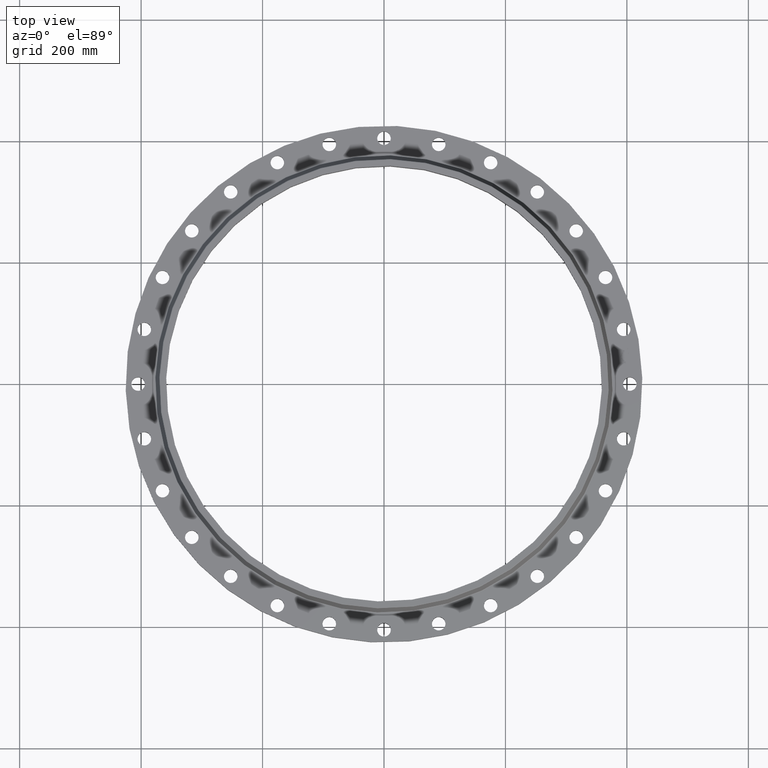
[diagram: clean part render]
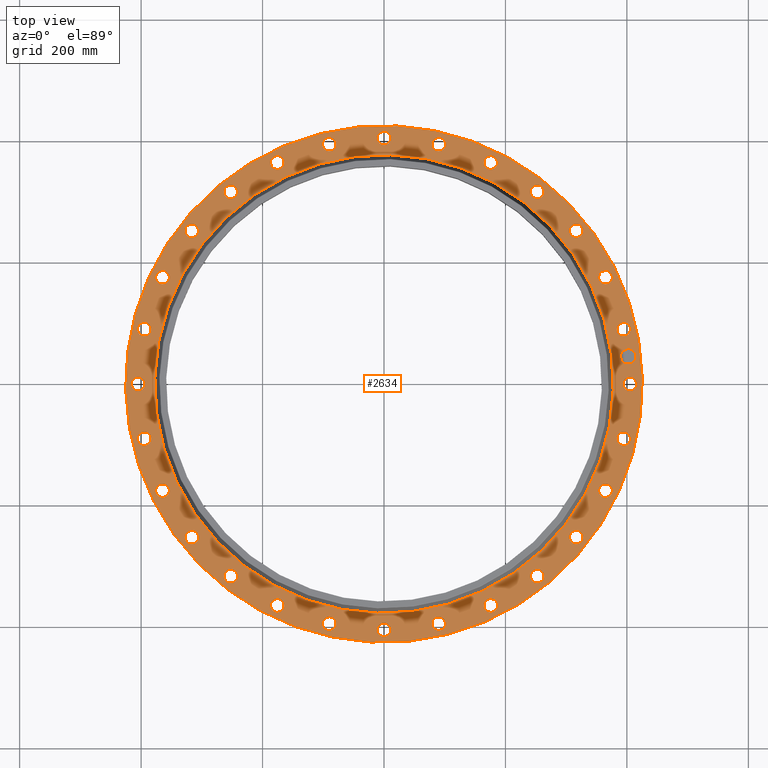
[diagram: same view with one face highlighted and labeled with its STEP entity id]
A machine part, top view. The second image highlights one B-rep face of the part: STEP entity #2634.
In plain terms, the highlighted planar face has unit normal (0, 0, -1).
Its self-contained STEP definition (entity closure, byte-faithful):
#65=AXIS2_PLACEMENT_3D('Circle Axis2P3D',#63,#64,$) ;
#89=AXIS2_PLACEMENT_3D('Circle Axis2P3D',#87,#88,$) ;
#123=AXIS2_PLACEMENT_3D('Circle Axis2P3D',#121,#122,$) ;
#147=AXIS2_PLACEMENT_3D('Circle Axis2P3D',#145,#146,$) ;
#164=AXIS2_PLACEMENT_3D('Circle Axis2P3D',#162,#163,$) ;
#199=AXIS2_PLACEMENT_3D('Circle Axis2P3D',#197,#198,$) ;
#1324=AXIS2_PLACEMENT_3D('Circle Axis2P3D',#1322,#1323,$) ;
#1336=AXIS2_PLACEMENT_3D('Circle Axis2P3D',#1334,#1335,$) ;
#1368=AXIS2_PLACEMENT_3D('Circle Axis2P3D',#1366,#1367,$) ;
#1380=AXIS2_PLACEMENT_3D('Circle Axis2P3D',#1378,#1379,$) ;
#1412=AXIS2_PLACEMENT_3D('Circle Axis2P3D',#1410,#1411,$) ;
#1424=AXIS2_PLACEMENT_3D('Circle Axis2P3D',#1422,#1423,$) ;
#1456=AXIS2_PLACEMENT_3D('Circle Axis2P3D',#1454,#1455,$) ;
#1468=AXIS2_PLACEMENT_3D('Circle Axis2P3D',#1466,#1467,$) ;
#1500=AXIS2_PLACEMENT_3D('Circle Axis2P3D',#1498,#1499,$) ;
#1512=AXIS2_PLACEMENT_3D('Circle Axis2P3D',#1510,#1511,$) ;
#1544=AXIS2_PLACEMENT_3D('Circle Axis2P3D',#1542,#1543,$) ;
#1556=AXIS2_PLACEMENT_3D('Circle Axis2P3D',#1554,#1555,$) ;
#1588=AXIS2_PLACEMENT_3D('Circle Axis2P3D',#1586,#1587,$) ;
#1600=AXIS2_PLACEMENT_3D('Circle Axis2P3D',#1598,#1599,$) ;
#1632=AXIS2_PLACEMENT_3D('Circle Axis2P3D',#1630,#1631,$) ;
#1644=AXIS2_PLACEMENT_3D('Circle Axis2P3D',#1642,#1643,$) ;
#1676=AXIS2_PLACEMENT_3D('Circle Axis2P3D',#1674,#1675,$) ;
#1688=AXIS2_PLACEMENT_3D('Circle Axis2P3D',#1686,#1687,$) ;
#1720=AXIS2_PLACEMENT_3D('Circle Axis2P3D',#1718,#1719,$) ;
#1732=AXIS2_PLACEMENT_3D('Circle Axis2P3D',#1730,#1731,$) ;
#1764=AXIS2_PLACEMENT_3D('Circle Axis2P3D',#1762,#1763,$) ;
#1776=AXIS2_PLACEMENT_3D('Circle Axis2P3D',#1774,#1775,$) ;
#1808=AXIS2_PLACEMENT_3D('Circle Axis2P3D',#1806,#1807,$) ;
#1820=AXIS2_PLACEMENT_3D('Circle Axis2P3D',#1818,#1819,$) ;
#1852=AXIS2_PLACEMENT_3D('Circle Axis2P3D',#1850,#1851,$) ;
#1864=AXIS2_PLACEMENT_3D('Circle Axis2P3D',#1862,#1863,$) ;
#1896=AXIS2_PLACEMENT_3D('Circle Axis2P3D',#1894,#1895,$) ;
#1908=AXIS2_PLACEMENT_3D('Circle Axis2P3D',#1906,#1907,$) ;
#1940=AXIS2_PLACEMENT_3D('Circle Axis2P3D',#1938,#1939,$) ;
#1952=AXIS2_PLACEMENT_3D('Circle Axis2P3D',#1950,#1951,$) ;
#1984=AXIS2_PLACEMENT_3D('Circle Axis2P3D',#1982,#1983,$) ;
#1996=AXIS2_PLACEMENT_3D('Circle Axis2P3D',#1994,#1995,$) ;
#2028=AXIS2_PLACEMENT_3D('Circle Axis2P3D',#2026,#2027,$) ;
#2040=AXIS2_PLACEMENT_3D('Circle Axis2P3D',#2038,#2039,$) ;
#2072=AXIS2_PLACEMENT_3D('Circle Axis2P3D',#2070,#2071,$) ;
#2084=AXIS2_PLACEMENT_3D('Circle Axis2P3D',#2082,#2083,$) ;
#2116=AXIS2_PLACEMENT_3D('Circle Axis2P3D',#2114,#2115,$) ;
#2128=AXIS2_PLACEMENT_3D('Circle Axis2P3D',#2126,#2127,$) ;
#2160=AXIS2_PLACEMENT_3D('Circle Axis2P3D',#2158,#2159,$) ;
#2172=AXIS2_PLACEMENT_3D('Circle Axis2P3D',#2170,#2171,$) ;
#2204=AXIS2_PLACEMENT_3D('Circle Axis2P3D',#2202,#2203,$) ;
#2216=AXIS2_PLACEMENT_3D('Circle Axis2P3D',#2214,#2215,$) ;
#2248=AXIS2_PLACEMENT_3D('Circle Axis2P3D',#2246,#2247,$) ;
#2260=AXIS2_PLACEMENT_3D('Circle Axis2P3D',#2258,#2259,$) ;
#2292=AXIS2_PLACEMENT_3D('Circle Axis2P3D',#2290,#2291,$) ;
#2304=AXIS2_PLACEMENT_3D('Circle Axis2P3D',#2302,#2303,$) ;
#2336=AXIS2_PLACEMENT_3D('Circle Axis2P3D',#2334,#2335,$) ;
#2348=AXIS2_PLACEMENT_3D('Circle Axis2P3D',#2346,#2347,$) ;
#2380=AXIS2_PLACEMENT_3D('Circle Axis2P3D',#2378,#2379,$) ;
#2392=AXIS2_PLACEMENT_3D('Circle Axis2P3D',#2390,#2391,$) ;
#2424=AXIS2_PLACEMENT_3D('Circle Axis2P3D',#2422,#2423,$) ;
#2436=AXIS2_PLACEMENT_3D('Circle Axis2P3D',#2434,#2435,$) ;
#2468=AXIS2_PLACEMENT_3D('Circle Axis2P3D',#2466,#2467,$) ;
#2480=AXIS2_PLACEMENT_3D('Circle Axis2P3D',#2478,#2479,$) ;
#2494=AXIS2_PLACEMENT_3D('Plane Axis2P3D',#2491,#2492,#2493) ;
#2618=AXIS2_PLACEMENT_3D('Circle Axis2P3D',#2616,#2617,$) ;
#2627=AXIS2_PLACEMENT_3D('Circle Axis2P3D',#2625,#2626,$) ;
#46=CARTESIAN_POINT('Vertex',(15.5538636728,0.210947236987,1.38000000001)) ;
#60=CARTESIAN_POINT('Vertex',(16.3261363273,-0.210947236987,1.38000000001)) ;
#63=CARTESIAN_POINT('Axis2P3D Location',(15.9400000001,0.,1.38000000001)) ;
#87=CARTESIAN_POINT('Axis2P3D Location',(15.9400000001,0.,1.38000000001)) ;
#118=CARTESIAN_POINT('Vertex',(-8.03037777165,-14.6995079117,1.38000000001)) ;
#121=CARTESIAN_POINT('Axis2P3D Location',(0.,0.,1.38000000001)) ;
#125=CARTESIAN_POINT('Vertex',(8.03037777165,14.6995079117,1.38000000001)) ;
#145=CARTESIAN_POINT('Axis2P3D Location',(0.,0.,1.38000000001)) ;
#162=CARTESIAN_POINT('Axis2P3D Location',(0.,0.,1.38000000001)) ;
#166=CARTESIAN_POINT('Vertex',(7.12682650201,13.0455684067,1.38000000001)) ;
#168=CARTESIAN_POINT('Vertex',(-7.12682650201,-13.0455684067,1.38000000001)) ;
#197=CARTESIAN_POINT('Axis2P3D Location',(0.,0.,1.38000000001)) ;
#1312=CARTESIAN_POINT('Vertex',(-15.5538636728,-0.210947236987,1.38000000001)) ;
#1319=CARTESIAN_POINT('Vertex',(-16.3261363273,0.210947236987,1.38000000001)) ;
#1322=CARTESIAN_POINT('Axis2P3D Location',(-15.9400000001,-9.03086900289E-015,1.38000000001)) ;
#1334=CARTESIAN_POINT('Axis2P3D Location',(-15.9400000001,-9.03086900289E-015,1.38000000001)) ;
#1356=CARTESIAN_POINT('Vertex',(15.1169556607,3.66671862044,1.38000000001)) ;
#1363=CARTESIAN_POINT('Vertex',(15.9637461798,3.42724875411,1.38000000001)) ;
#1366=CARTESIAN_POINT('Axis2P3D Location',(15.5403509202,3.54698368728,1.38000000001)) ;
#1378=CARTESIAN_POINT('Axis2P3D Location',(15.5403509202,3.54698368728,1.38000000001)) ;
#1400=CARTESIAN_POINT('Vertex',(-15.1169556607,-3.66671862044,1.38000000001)) ;
#1407=CARTESIAN_POINT('Vertex',(-15.9637461798,-3.42724875411,1.38000000001)) ;
#1410=CARTESIAN_POINT('Axis2P3D Location',(-15.5403509202,-3.54698368728,1.38000000001)) ;
#1422=CARTESIAN_POINT('Axis2P3D Location',(-15.5403509202,-3.54698368728,1.38000000001)) ;
#1444=CARTESIAN_POINT('Vertex',(15.2108360131,-3.25540192177,1.38000000001)) ;
#1451=CARTESIAN_POINT('Vertex',(15.8698658274,-3.83856545278,1.38000000001)) ;
#1454=CARTESIAN_POINT('Axis2P3D Location',(15.5403509202,-3.54698368728,1.38000000001)) ;
#1466=CARTESIAN_POINT('Axis2P3D Location',(15.5403509202,-3.54698368728,1.38000000001)) ;
#1488=CARTESIAN_POINT('Vertex',(9.53275018849,12.2920237444,1.38000000001)) ;
#1495=CARTESIAN_POINT('Vertex',(10.3441046948,12.6327639168,1.38000000001)) ;
#1498=CARTESIAN_POINT('Axis2P3D Location',(9.93842744167,12.4623938306,1.38000000001)) ;
#1510=CARTESIAN_POINT('Axis2P3D Location',(9.93842744167,12.4623938306,1.38000000001)) ;
#1532=CARTESIAN_POINT('Vertex',(-14.1050735208,6.5585116348,1.38000000001)) ;
#1539=CARTESIAN_POINT('Vertex',(-14.6178139881,7.27370196833,1.38000000001)) ;
#1542=CARTESIAN_POINT('Axis2P3D Location',(-14.3614437544,6.91610680156,1.38000000001)) ;
#1554=CARTESIAN_POINT('Axis2P3D Location',(-14.3614437544,6.91610680156,1.38000000001)) ;
#1576=CARTESIAN_POINT('Vertex',(-3.66671862044,15.1169556607,1.38000000001)) ;
#1583=CARTESIAN_POINT('Vertex',(-3.42724875411,15.9637461798,1.38000000001)) ;
#1586=CARTESIAN_POINT('Axis2P3D Location',(-3.54698368728,15.5403509202,1.38000000001)) ;
#1598=CARTESIAN_POINT('Axis2P3D Location',(-3.54698368728,15.5403509202,1.38000000001)) ;
#1620=CARTESIAN_POINT('Vertex',(12.2920237444,-9.53275018849,1.38000000001)) ;
#1627=CARTESIAN_POINT('Vertex',(12.6327639168,-10.3441046948,1.38000000001)) ;
#1630=CARTESIAN_POINT('Axis2P3D Location',(12.4623938306,-9.93842744167,1.38000000001)) ;
#1642=CARTESIAN_POINT('Axis2P3D Location',(12.4623938306,-9.93842744167,1.38000000001)) ;
#1664=CARTESIAN_POINT('Vertex',(12.0289768424,9.86260057053,1.38000000001)) ;
#1671=CARTESIAN_POINT('Vertex',(12.8958108187,10.0142543128,1.38000000001)) ;
#1674=CARTESIAN_POINT('Axis2P3D Location',(12.4623938306,9.93842744167,1.38000000001)) ;
#1686=CARTESIAN_POINT('Axis2P3D Location',(12.4623938306,9.93842744167,1.38000000001)) ;
#1708=CARTESIAN_POINT('Vertex',(9.86260057053,-12.0289768424,1.38000000001)) ;
#1715=CARTESIAN_POINT('Vertex',(10.0142543128,-12.8958108187,1.38000000001)) ;
#1718=CARTESIAN_POINT('Axis2P3D Location',(9.93842744167,-12.4623938306,1.38000000001)) ;
#1730=CARTESIAN_POINT('Axis2P3D Location',(9.93842744167,-12.4623938306,1.38000000001)) ;
#1752=CARTESIAN_POINT('Vertex',(-9.86260057053,12.0289768424,1.38000000001)) ;
#1759=CARTESIAN_POINT('Vertex',(-10.0142543128,12.8958108187,1.38000000001)) ;
#1762=CARTESIAN_POINT('Axis2P3D Location',(-9.93842744167,12.4623938306,1.38000000001)) ;
#1774=CARTESIAN_POINT('Axis2P3D Location',(-9.93842744167,12.4623938306,1.38000000001)) ;
#1796=CARTESIAN_POINT('Vertex',(6.93862542139,-13.9220203689,1.38000000001)) ;
#1803=CARTESIAN_POINT('Vertex',(6.89358818174,-14.80086714,1.38000000001)) ;
#1806=CARTESIAN_POINT('Axis2P3D Location',(6.91610680156,-14.3614437544,1.38000000001)) ;
#1818=CARTESIAN_POINT('Axis2P3D Location',(6.91610680156,-14.3614437544,1.38000000001)) ;
#1840=CARTESIAN_POINT('Vertex',(3.25540192177,15.2108360131,1.38000000001)) ;
#1847=CARTESIAN_POINT('Vertex',(3.83856545278,15.8698658274,1.38000000001)) ;
#1850=CARTESIAN_POINT('Axis2P3D Location',(3.54698368728,15.5403509202,1.38000000001)) ;
#1862=CARTESIAN_POINT('Axis2P3D Location',(3.54698368728,15.5403509202,1.38000000001)) ;
#1884=CARTESIAN_POINT('Vertex',(3.66671862044,-15.1169556607,1.38000000001)) ;
#1891=CARTESIAN_POINT('Vertex',(3.42724875411,-15.9637461798,1.38000000001)) ;
#1894=CARTESIAN_POINT('Axis2P3D Location',(3.54698368728,-15.5403509202,1.38000000001)) ;
#1906=CARTESIAN_POINT('Axis2P3D Location',(3.54698368728,-15.5403509202,1.38000000001)) ;
#1928=CARTESIAN_POINT('Vertex',(13.9220203689,6.93862542139,1.38000000001)) ;
#1935=CARTESIAN_POINT('Vertex',(14.80086714,6.89358818174,1.38000000001)) ;
#1938=CARTESIAN_POINT('Axis2P3D Location',(14.3614437544,6.91610680156,1.38000000001)) ;
#1950=CARTESIAN_POINT('Axis2P3D Location',(14.3614437544,6.91610680156,1.38000000001)) ;
#1972=CARTESIAN_POINT('Vertex',(0.210947236987,-15.5538636728,1.38000000001)) ;
#1979=CARTESIAN_POINT('Vertex',(-0.210947236987,-16.3261363273,1.38000000001)) ;
#1982=CARTESIAN_POINT('Axis2P3D Location',(4.51543450144E-015,-15.9400000001,1.38000000001)) ;
#1994=CARTESIAN_POINT('Axis2P3D Location',(4.51543450144E-015,-15.9400000001,1.38000000001)) ;
#2016=CARTESIAN_POINT('Vertex',(-15.2108360131,3.25540192177,1.38000000001)) ;
#2023=CARTESIAN_POINT('Vertex',(-15.8698658274,3.83856545278,1.38000000001)) ;
#2026=CARTESIAN_POINT('Axis2P3D Location',(-15.5403509202,3.54698368728,1.38000000001)) ;
#2038=CARTESIAN_POINT('Axis2P3D Location',(-15.5403509202,3.54698368728,1.38000000001)) ;
#2060=CARTESIAN_POINT('Vertex',(-3.25540192177,-15.2108360131,1.38000000001)) ;
#2067=CARTESIAN_POINT('Vertex',(-3.83856545278,-15.8698658274,1.38000000001)) ;
#2070=CARTESIAN_POINT('Axis2P3D Location',(-3.54698368728,-15.5403509202,1.38000000001)) ;
#2082=CARTESIAN_POINT('Axis2P3D Location',(-3.54698368728,-15.5403509202,1.38000000001)) ;
#2104=CARTESIAN_POINT('Vertex',(-12.2920237444,9.53275018849,1.38000000001)) ;
#2111=CARTESIAN_POINT('Vertex',(-12.6327639168,10.3441046948,1.38000000001)) ;
#2114=CARTESIAN_POINT('Axis2P3D Location',(-12.4623938306,9.93842744167,1.38000000001)) ;
#2126=CARTESIAN_POINT('Axis2P3D Location',(-12.4623938306,9.93842744167,1.38000000001)) ;
#2148=CARTESIAN_POINT('Vertex',(-6.5585116348,-14.1050735208,1.38000000001)) ;
#2155=CARTESIAN_POINT('Vertex',(-7.27370196833,-14.6178139881,1.38000000001)) ;
#2158=CARTESIAN_POINT('Axis2P3D Location',(-6.91610680156,-14.3614437544,1.38000000001)) ;
#2170=CARTESIAN_POINT('Axis2P3D Location',(-6.91610680156,-14.3614437544,1.38000000001)) ;
#2192=CARTESIAN_POINT('Vertex',(-6.93862542139,13.9220203689,1.38000000001)) ;
#2199=CARTESIAN_POINT('Vertex',(-6.89358818174,14.80086714,1.38000000001)) ;
#2202=CARTESIAN_POINT('Axis2P3D Location',(-6.91610680156,14.3614437544,1.38000000001)) ;
#2214=CARTESIAN_POINT('Axis2P3D Location',(-6.91610680156,14.3614437544,1.38000000001)) ;
#2236=CARTESIAN_POINT('Vertex',(-9.53275018849,-12.2920237444,1.38000000001)) ;
#2243=CARTESIAN_POINT('Vertex',(-10.3441046948,-12.6327639168,1.38000000001)) ;
#2246=CARTESIAN_POINT('Axis2P3D Location',(-9.93842744167,-12.4623938306,1.38000000001)) ;
#2258=CARTESIAN_POINT('Axis2P3D Location',(-9.93842744167,-12.4623938306,1.38000000001)) ;
#2280=CARTESIAN_POINT('Vertex',(-0.210947236987,15.5538636728,1.38000000001)) ;
#2287=CARTESIAN_POINT('Vertex',(0.210947236987,16.3261363273,1.38000000001)) ;
#2290=CARTESIAN_POINT('Axis2P3D Location',(-6.90200620363E-016,15.9400000001,1.38000000001)) ;
#2302=CARTESIAN_POINT('Axis2P3D Location',(-6.90200620363E-016,15.9400000001,1.38000000001)) ;
#2324=CARTESIAN_POINT('Vertex',(-12.0289768424,-9.86260057053,1.38000000001)) ;
#2331=CARTESIAN_POINT('Vertex',(-12.8958108187,-10.0142543128,1.38000000001)) ;
#2334=CARTESIAN_POINT('Axis2P3D Location',(-12.4623938306,-9.93842744167,1.38000000001)) ;
#2346=CARTESIAN_POINT('Axis2P3D Location',(-12.4623938306,-9.93842744167,1.38000000001)) ;
#2368=CARTESIAN_POINT('Vertex',(6.5585116348,14.1050735208,1.38000000001)) ;
#2375=CARTESIAN_POINT('Vertex',(7.27370196833,14.6178139881,1.38000000001)) ;
#2378=CARTESIAN_POINT('Axis2P3D Location',(6.91610680156,14.3614437544,1.38000000001)) ;
#2390=CARTESIAN_POINT('Axis2P3D Location',(6.91610680156,14.3614437544,1.38000000001)) ;
#2412=CARTESIAN_POINT('Vertex',(-13.9220203689,-6.93862542139,1.38000000001)) ;
#2419=CARTESIAN_POINT('Vertex',(-14.80086714,-6.89358818174,1.38000000001)) ;
#2422=CARTESIAN_POINT('Axis2P3D Location',(-14.3614437544,-6.91610680156,1.38000000001)) ;
#2434=CARTESIAN_POINT('Axis2P3D Location',(-14.3614437544,-6.91610680156,1.38000000001)) ;
#2456=CARTESIAN_POINT('Vertex',(14.1050735208,-6.5585116348,1.38000000001)) ;
#2463=CARTESIAN_POINT('Vertex',(14.6178139881,-7.27370196833,1.38000000001)) ;
#2466=CARTESIAN_POINT('Axis2P3D Location',(14.3614437544,-6.91610680156,1.38000000001)) ;
#2478=CARTESIAN_POINT('Axis2P3D Location',(14.3614437544,-6.91610680156,1.38000000001)) ;
#2491=CARTESIAN_POINT('Axis2P3D Location',(0.,16.7500000001,1.38000000001)) ;
#2616=CARTESIAN_POINT('Axis2P3D Location',(15.8397726258,1.78471374909,1.38000000001)) ;
#2620=CARTESIAN_POINT('Vertex',(15.7837903883,2.28156984907,1.38000000001)) ;
#2622=CARTESIAN_POINT('Vertex',(15.8957548633,1.28785764911,1.38000000001)) ;
#2625=CARTESIAN_POINT('Axis2P3D Location',(15.8397726258,1.78471374909,1.38000000001)) ;
#64=DIRECTION('Axis2P3D Direction',(0.,-0.,-0.0393700787402)) ;
#88=DIRECTION('Axis2P3D Direction',(0.,-0.,-0.0393700787402)) ;
#122=DIRECTION('Axis2P3D Direction',(0.,0.,-0.0393700787402)) ;
#146=DIRECTION('Axis2P3D Direction',(0.,0.,-0.0393700787402)) ;
#163=DIRECTION('Axis2P3D Direction',(0.,0.,-0.0393700787402)) ;
#198=DIRECTION('Axis2P3D Direction',(0.,0.,-0.0393700787402)) ;
#1323=DIRECTION('Axis2P3D Direction',(-0.,0.,-0.0393700787402)) ;
#1335=DIRECTION('Axis2P3D Direction',(-0.,0.,-0.0393700787402)) ;
#1367=DIRECTION('Axis2P3D Direction',(0.,0.,-0.0393700787402)) ;
#1379=DIRECTION('Axis2P3D Direction',(0.,0.,-0.0393700787402)) ;
#1411=DIRECTION('Axis2P3D Direction',(-0.,0.,-0.0393700787402)) ;
#1423=DIRECTION('Axis2P3D Direction',(-0.,0.,-0.0393700787402)) ;
#1455=DIRECTION('Axis2P3D Direction',(0.,-0.,-0.0393700787402)) ;
#1467=DIRECTION('Axis2P3D Direction',(0.,-0.,-0.0393700787402)) ;
#1499=DIRECTION('Axis2P3D Direction',(0.,0.,-0.0393700787402)) ;
#1511=DIRECTION('Axis2P3D Direction',(0.,0.,-0.0393700787402)) ;
#1543=DIRECTION('Axis2P3D Direction',(0.,0.,-0.0393700787402)) ;
#1555=DIRECTION('Axis2P3D Direction',(0.,0.,-0.0393700787402)) ;
#1587=DIRECTION('Axis2P3D Direction',(0.,0.,-0.0393700787402)) ;
#1599=DIRECTION('Axis2P3D Direction',(0.,0.,-0.0393700787402)) ;
#1631=DIRECTION('Axis2P3D Direction',(0.,-0.,-0.0393700787402)) ;
#1643=DIRECTION('Axis2P3D Direction',(0.,-0.,-0.0393700787402)) ;
#1675=DIRECTION('Axis2P3D Direction',(0.,0.,-0.0393700787402)) ;
#1687=DIRECTION('Axis2P3D Direction',(0.,0.,-0.0393700787402)) ;
#1719=DIRECTION('Axis2P3D Direction',(0.,-0.,-0.0393700787402)) ;
#1731=DIRECTION('Axis2P3D Direction',(0.,-0.,-0.0393700787402)) ;
#1763=DIRECTION('Axis2P3D Direction',(0.,0.,-0.0393700787402)) ;
#1775=DIRECTION('Axis2P3D Direction',(0.,0.,-0.0393700787402)) ;
#1807=DIRECTION('Axis2P3D Direction',(0.,-0.,-0.0393700787402)) ;
#1819=DIRECTION('Axis2P3D Direction',(0.,-0.,-0.0393700787402)) ;
#1851=DIRECTION('Axis2P3D Direction',(0.,0.,-0.0393700787402)) ;
#1863=DIRECTION('Axis2P3D Direction',(0.,0.,-0.0393700787402)) ;
#1895=DIRECTION('Axis2P3D Direction',(0.,-0.,-0.0393700787402)) ;
#1907=DIRECTION('Axis2P3D Direction',(0.,-0.,-0.0393700787402)) ;
#1939=DIRECTION('Axis2P3D Direction',(0.,0.,-0.0393700787402)) ;
#1951=DIRECTION('Axis2P3D Direction',(0.,0.,-0.0393700787402)) ;
#1983=DIRECTION('Axis2P3D Direction',(0.,-0.,-0.0393700787402)) ;
#1995=DIRECTION('Axis2P3D Direction',(0.,-0.,-0.0393700787402)) ;
#2027=DIRECTION('Axis2P3D Direction',(0.,0.,-0.0393700787402)) ;
#2039=DIRECTION('Axis2P3D Direction',(0.,0.,-0.0393700787402)) ;
#2071=DIRECTION('Axis2P3D Direction',(-0.,0.,-0.0393700787402)) ;
#2083=DIRECTION('Axis2P3D Direction',(-0.,0.,-0.0393700787402)) ;
#2115=DIRECTION('Axis2P3D Direction',(0.,0.,-0.0393700787402)) ;
#2127=DIRECTION('Axis2P3D Direction',(0.,0.,-0.0393700787402)) ;
#2159=DIRECTION('Axis2P3D Direction',(-0.,0.,-0.0393700787402)) ;
#2171=DIRECTION('Axis2P3D Direction',(-0.,0.,-0.0393700787402)) ;
#2203=DIRECTION('Axis2P3D Direction',(0.,0.,-0.0393700787402)) ;
#2215=DIRECTION('Axis2P3D Direction',(0.,0.,-0.0393700787402)) ;
#2247=DIRECTION('Axis2P3D Direction',(-0.,0.,-0.0393700787402)) ;
#2259=DIRECTION('Axis2P3D Direction',(-0.,0.,-0.0393700787402)) ;
#2291=DIRECTION('Axis2P3D Direction',(0.,0.,-0.0393700787402)) ;
#2303=DIRECTION('Axis2P3D Direction',(0.,0.,-0.0393700787402)) ;
#2335=DIRECTION('Axis2P3D Direction',(-0.,0.,-0.0393700787402)) ;
#2347=DIRECTION('Axis2P3D Direction',(-0.,0.,-0.0393700787402)) ;
#2379=DIRECTION('Axis2P3D Direction',(0.,0.,-0.0393700787402)) ;
#2391=DIRECTION('Axis2P3D Direction',(0.,0.,-0.0393700787402)) ;
#2423=DIRECTION('Axis2P3D Direction',(-0.,0.,-0.0393700787402)) ;
#2435=DIRECTION('Axis2P3D Direction',(-0.,0.,-0.0393700787402)) ;
#2467=DIRECTION('Axis2P3D Direction',(0.,-0.,-0.0393700787402)) ;
#2479=DIRECTION('Axis2P3D Direction',(0.,-0.,-0.0393700787402)) ;
#2492=DIRECTION('Axis2P3D Direction',(0.,0.,-0.0393700787402)) ;
#2493=DIRECTION('Axis2P3D XDirection',(0.0393700787402,0.,0.)) ;
#2617=DIRECTION('Axis2P3D Direction',(0.,0.,-0.0393700787402)) ;
#2626=DIRECTION('Axis2P3D Direction',(0.,0.,-0.0393700787402)) ;
#2497=ORIENTED_EDGE('',*,*,#149,.F.) ;
#2498=ORIENTED_EDGE('',*,*,#127,.F.) ;
#2501=ORIENTED_EDGE('',*,*,#67,.T.) ;
#2502=ORIENTED_EDGE('',*,*,#91,.T.) ;
#2505=ORIENTED_EDGE('',*,*,#201,.T.) ;
#2506=ORIENTED_EDGE('',*,*,#170,.T.) ;
#2509=ORIENTED_EDGE('',*,*,#1470,.T.) ;
#2510=ORIENTED_EDGE('',*,*,#1458,.T.) ;
#2513=ORIENTED_EDGE('',*,*,#2482,.T.) ;
#2514=ORIENTED_EDGE('',*,*,#2470,.T.) ;
#2517=ORIENTED_EDGE('',*,*,#1646,.T.) ;
#2518=ORIENTED_EDGE('',*,*,#1634,.T.) ;
#2521=ORIENTED_EDGE('',*,*,#1734,.T.) ;
#2522=ORIENTED_EDGE('',*,*,#1722,.T.) ;
#2525=ORIENTED_EDGE('',*,*,#1822,.T.) ;
#2526=ORIENTED_EDGE('',*,*,#1810,.T.) ;
#2529=ORIENTED_EDGE('',*,*,#1910,.T.) ;
#2530=ORIENTED_EDGE('',*,*,#1898,.T.) ;
#2533=ORIENTED_EDGE('',*,*,#1998,.T.) ;
#2534=ORIENTED_EDGE('',*,*,#1986,.T.) ;
#2537=ORIENTED_EDGE('',*,*,#2086,.T.) ;
#2538=ORIENTED_EDGE('',*,*,#2074,.T.) ;
#2541=ORIENTED_EDGE('',*,*,#2174,.T.) ;
#2542=ORIENTED_EDGE('',*,*,#2162,.T.) ;
#2545=ORIENTED_EDGE('',*,*,#2262,.T.) ;
#2546=ORIENTED_EDGE('',*,*,#2250,.T.) ;
#2549=ORIENTED_EDGE('',*,*,#2350,.T.) ;
#2550=ORIENTED_EDGE('',*,*,#2338,.T.) ;
#2553=ORIENTED_EDGE('',*,*,#2438,.T.) ;
#2554=ORIENTED_EDGE('',*,*,#2426,.T.) ;
#2557=ORIENTED_EDGE('',*,*,#1426,.T.) ;
#2558=ORIENTED_EDGE('',*,*,#1414,.T.) ;
#2561=ORIENTED_EDGE('',*,*,#1338,.T.) ;
#2562=ORIENTED_EDGE('',*,*,#1326,.T.) ;
#2565=ORIENTED_EDGE('',*,*,#2042,.T.) ;
#2566=ORIENTED_EDGE('',*,*,#2030,.T.) ;
#2569=ORIENTED_EDGE('',*,*,#1558,.T.) ;
#2570=ORIENTED_EDGE('',*,*,#1546,.T.) ;
#2573=ORIENTED_EDGE('',*,*,#2130,.T.) ;
#2574=ORIENTED_EDGE('',*,*,#2118,.T.) ;
#2577=ORIENTED_EDGE('',*,*,#1778,.T.) ;
#2578=ORIENTED_EDGE('',*,*,#1766,.T.) ;
#2581=ORIENTED_EDGE('',*,*,#2218,.T.) ;
#2582=ORIENTED_EDGE('',*,*,#2206,.T.) ;
#2585=ORIENTED_EDGE('',*,*,#1602,.T.) ;
#2586=ORIENTED_EDGE('',*,*,#1590,.T.) ;
#2589=ORIENTED_EDGE('',*,*,#2306,.T.) ;
#2590=ORIENTED_EDGE('',*,*,#2294,.T.) ;
#2593=ORIENTED_EDGE('',*,*,#1866,.T.) ;
#2594=ORIENTED_EDGE('',*,*,#1854,.T.) ;
#2597=ORIENTED_EDGE('',*,*,#2394,.T.) ;
#2598=ORIENTED_EDGE('',*,*,#2382,.T.) ;
#2601=ORIENTED_EDGE('',*,*,#1514,.T.) ;
#2602=ORIENTED_EDGE('',*,*,#1502,.T.) ;
#2605=ORIENTED_EDGE('',*,*,#1690,.T.) ;
#2606=ORIENTED_EDGE('',*,*,#1678,.T.) ;
#2609=ORIENTED_EDGE('',*,*,#1954,.T.) ;
#2610=ORIENTED_EDGE('',*,*,#1942,.T.) ;
#2613=ORIENTED_EDGE('',*,*,#1382,.T.) ;
#2614=ORIENTED_EDGE('',*,*,#1370,.T.) ;
#2631=ORIENTED_EDGE('',*,*,#2624,.T.) ;
#2632=ORIENTED_EDGE('',*,*,#2629,.T.) ;
#2503=FACE_BOUND('',#2500,.T.) ;
#2507=FACE_BOUND('',#2504,.T.) ;
#2511=FACE_BOUND('',#2508,.T.) ;
#2515=FACE_BOUND('',#2512,.T.) ;
#2519=FACE_BOUND('',#2516,.T.) ;
#2523=FACE_BOUND('',#2520,.T.) ;
#2527=FACE_BOUND('',#2524,.T.) ;
#2531=FACE_BOUND('',#2528,.T.) ;
#2535=FACE_BOUND('',#2532,.T.) ;
#2539=FACE_BOUND('',#2536,.T.) ;
#2543=FACE_BOUND('',#2540,.T.) ;
#2547=FACE_BOUND('',#2544,.T.) ;
#2551=FACE_BOUND('',#2548,.T.) ;
#2555=FACE_BOUND('',#2552,.T.) ;
#2559=FACE_BOUND('',#2556,.T.) ;
#2563=FACE_BOUND('',#2560,.T.) ;
#2567=FACE_BOUND('',#2564,.T.) ;
#2571=FACE_BOUND('',#2568,.T.) ;
#2575=FACE_BOUND('',#2572,.T.) ;
#2579=FACE_BOUND('',#2576,.T.) ;
#2583=FACE_BOUND('',#2580,.T.) ;
#2587=FACE_BOUND('',#2584,.T.) ;
#2591=FACE_BOUND('',#2588,.T.) ;
#2595=FACE_BOUND('',#2592,.T.) ;
#2599=FACE_BOUND('',#2596,.T.) ;
#2603=FACE_BOUND('',#2600,.T.) ;
#2607=FACE_BOUND('',#2604,.T.) ;
#2611=FACE_BOUND('',#2608,.T.) ;
#2615=FACE_BOUND('',#2612,.T.) ;
#2633=FACE_BOUND('',#2630,.T.) ;
#2634=ADVANCED_FACE('PartBody',(#2499,#2503,#2507,#2511,#2515,#2519,#2523,#2527,#2531,#2535,#2539,#2543,#2547,#2551,#2555,#2559,#2563,#2567,#2571,#2575,#2579,#2583,#2587,#2591,#2595,#2599,#2603,#2607,#2611,#2615,#2633),#2495,.F.) ;
#66=CIRCLE('generated circle',#65,0.440000000002) ;
#90=CIRCLE('generated circle',#89,0.440000000002) ;
#124=CIRCLE('generated circle',#123,16.7500000001) ;
#148=CIRCLE('generated circle',#147,16.7500000001) ;
#165=CIRCLE('generated circle',#164,14.8653459779) ;
#200=CIRCLE('generated circle',#199,14.8653459779) ;
#1325=CIRCLE('generated circle',#1324,0.440000000002) ;
#1337=CIRCLE('generated circle',#1336,0.440000000002) ;
#1369=CIRCLE('generated circle',#1368,0.440000000002) ;
#1381=CIRCLE('generated circle',#1380,0.440000000002) ;
#1413=CIRCLE('generated circle',#1412,0.440000000002) ;
#1425=CIRCLE('generated circle',#1424,0.440000000002) ;
#1457=CIRCLE('generated circle',#1456,0.440000000002) ;
#1469=CIRCLE('generated circle',#1468,0.440000000002) ;
#1501=CIRCLE('generated circle',#1500,0.440000000002) ;
#1513=CIRCLE('generated circle',#1512,0.440000000002) ;
#1545=CIRCLE('generated circle',#1544,0.440000000002) ;
#1557=CIRCLE('generated circle',#1556,0.440000000002) ;
#1589=CIRCLE('generated circle',#1588,0.440000000002) ;
#1601=CIRCLE('generated circle',#1600,0.440000000002) ;
#1633=CIRCLE('generated circle',#1632,0.440000000002) ;
#1645=CIRCLE('generated circle',#1644,0.440000000002) ;
#1677=CIRCLE('generated circle',#1676,0.440000000002) ;
#1689=CIRCLE('generated circle',#1688,0.440000000002) ;
#1721=CIRCLE('generated circle',#1720,0.440000000002) ;
#1733=CIRCLE('generated circle',#1732,0.440000000002) ;
#1765=CIRCLE('generated circle',#1764,0.440000000002) ;
#1777=CIRCLE('generated circle',#1776,0.440000000002) ;
#1809=CIRCLE('generated circle',#1808,0.440000000002) ;
#1821=CIRCLE('generated circle',#1820,0.440000000002) ;
#1853=CIRCLE('generated circle',#1852,0.440000000002) ;
#1865=CIRCLE('generated circle',#1864,0.440000000002) ;
#1897=CIRCLE('generated circle',#1896,0.440000000002) ;
#1909=CIRCLE('generated circle',#1908,0.440000000002) ;
#1941=CIRCLE('generated circle',#1940,0.440000000002) ;
#1953=CIRCLE('generated circle',#1952,0.440000000002) ;
#1985=CIRCLE('generated circle',#1984,0.440000000002) ;
#1997=CIRCLE('generated circle',#1996,0.440000000002) ;
#2029=CIRCLE('generated circle',#2028,0.440000000002) ;
#2041=CIRCLE('generated circle',#2040,0.440000000002) ;
#2073=CIRCLE('generated circle',#2072,0.440000000002) ;
#2085=CIRCLE('generated circle',#2084,0.440000000002) ;
#2117=CIRCLE('generated circle',#2116,0.440000000002) ;
#2129=CIRCLE('generated circle',#2128,0.440000000002) ;
#2161=CIRCLE('generated circle',#2160,0.440000000002) ;
#2173=CIRCLE('generated circle',#2172,0.440000000002) ;
#2205=CIRCLE('generated circle',#2204,0.440000000002) ;
#2217=CIRCLE('generated circle',#2216,0.440000000002) ;
#2249=CIRCLE('generated circle',#2248,0.440000000002) ;
#2261=CIRCLE('generated circle',#2260,0.440000000002) ;
#2293=CIRCLE('generated circle',#2292,0.440000000002) ;
#2305=CIRCLE('generated circle',#2304,0.440000000002) ;
#2337=CIRCLE('generated circle',#2336,0.440000000002) ;
#2349=CIRCLE('generated circle',#2348,0.440000000002) ;
#2381=CIRCLE('generated circle',#2380,0.440000000002) ;
#2393=CIRCLE('generated circle',#2392,0.440000000002) ;
#2425=CIRCLE('generated circle',#2424,0.440000000002) ;
#2437=CIRCLE('generated circle',#2436,0.440000000002) ;
#2469=CIRCLE('generated circle',#2468,0.440000000002) ;
#2481=CIRCLE('generated circle',#2480,0.440000000002) ;
#2619=CIRCLE('generated circle',#2618,0.499999995002) ;
#2628=CIRCLE('generated circle',#2627,0.499999995002) ;
#67=EDGE_CURVE('',#47,#61,#66,.T.) ;
#91=EDGE_CURVE('',#61,#47,#90,.T.) ;
#127=EDGE_CURVE('',#119,#126,#124,.T.) ;
#149=EDGE_CURVE('',#126,#119,#148,.T.) ;
#170=EDGE_CURVE('',#167,#169,#165,.T.) ;
#201=EDGE_CURVE('',#169,#167,#200,.T.) ;
#1326=EDGE_CURVE('',#1313,#1320,#1325,.T.) ;
#1338=EDGE_CURVE('',#1320,#1313,#1337,.T.) ;
#1370=EDGE_CURVE('',#1357,#1364,#1369,.T.) ;
#1382=EDGE_CURVE('',#1364,#1357,#1381,.T.) ;
#1414=EDGE_CURVE('',#1401,#1408,#1413,.T.) ;
#1426=EDGE_CURVE('',#1408,#1401,#1425,.T.) ;
#1458=EDGE_CURVE('',#1445,#1452,#1457,.T.) ;
#1470=EDGE_CURVE('',#1452,#1445,#1469,.T.) ;
#1502=EDGE_CURVE('',#1489,#1496,#1501,.T.) ;
#1514=EDGE_CURVE('',#1496,#1489,#1513,.T.) ;
#1546=EDGE_CURVE('',#1533,#1540,#1545,.T.) ;
#1558=EDGE_CURVE('',#1540,#1533,#1557,.T.) ;
#1590=EDGE_CURVE('',#1577,#1584,#1589,.T.) ;
#1602=EDGE_CURVE('',#1584,#1577,#1601,.T.) ;
#1634=EDGE_CURVE('',#1621,#1628,#1633,.T.) ;
#1646=EDGE_CURVE('',#1628,#1621,#1645,.T.) ;
#1678=EDGE_CURVE('',#1665,#1672,#1677,.T.) ;
#1690=EDGE_CURVE('',#1672,#1665,#1689,.T.) ;
#1722=EDGE_CURVE('',#1709,#1716,#1721,.T.) ;
#1734=EDGE_CURVE('',#1716,#1709,#1733,.T.) ;
#1766=EDGE_CURVE('',#1753,#1760,#1765,.T.) ;
#1778=EDGE_CURVE('',#1760,#1753,#1777,.T.) ;
#1810=EDGE_CURVE('',#1797,#1804,#1809,.T.) ;
#1822=EDGE_CURVE('',#1804,#1797,#1821,.T.) ;
#1854=EDGE_CURVE('',#1841,#1848,#1853,.T.) ;
#1866=EDGE_CURVE('',#1848,#1841,#1865,.T.) ;
#1898=EDGE_CURVE('',#1885,#1892,#1897,.T.) ;
#1910=EDGE_CURVE('',#1892,#1885,#1909,.T.) ;
#1942=EDGE_CURVE('',#1929,#1936,#1941,.T.) ;
#1954=EDGE_CURVE('',#1936,#1929,#1953,.T.) ;
#1986=EDGE_CURVE('',#1973,#1980,#1985,.T.) ;
#1998=EDGE_CURVE('',#1980,#1973,#1997,.T.) ;
#2030=EDGE_CURVE('',#2017,#2024,#2029,.T.) ;
#2042=EDGE_CURVE('',#2024,#2017,#2041,.T.) ;
#2074=EDGE_CURVE('',#2061,#2068,#2073,.T.) ;
#2086=EDGE_CURVE('',#2068,#2061,#2085,.T.) ;
#2118=EDGE_CURVE('',#2105,#2112,#2117,.T.) ;
#2130=EDGE_CURVE('',#2112,#2105,#2129,.T.) ;
#2162=EDGE_CURVE('',#2149,#2156,#2161,.T.) ;
#2174=EDGE_CURVE('',#2156,#2149,#2173,.T.) ;
#2206=EDGE_CURVE('',#2193,#2200,#2205,.T.) ;
#2218=EDGE_CURVE('',#2200,#2193,#2217,.T.) ;
#2250=EDGE_CURVE('',#2237,#2244,#2249,.T.) ;
#2262=EDGE_CURVE('',#2244,#2237,#2261,.T.) ;
#2294=EDGE_CURVE('',#2281,#2288,#2293,.T.) ;
#2306=EDGE_CURVE('',#2288,#2281,#2305,.T.) ;
#2338=EDGE_CURVE('',#2325,#2332,#2337,.T.) ;
#2350=EDGE_CURVE('',#2332,#2325,#2349,.T.) ;
#2382=EDGE_CURVE('',#2369,#2376,#2381,.T.) ;
#2394=EDGE_CURVE('',#2376,#2369,#2393,.T.) ;
#2426=EDGE_CURVE('',#2413,#2420,#2425,.T.) ;
#2438=EDGE_CURVE('',#2420,#2413,#2437,.T.) ;
#2470=EDGE_CURVE('',#2457,#2464,#2469,.T.) ;
#2482=EDGE_CURVE('',#2464,#2457,#2481,.T.) ;
#2624=EDGE_CURVE('',#2621,#2623,#2619,.T.) ;
#2629=EDGE_CURVE('',#2623,#2621,#2628,.T.) ;
#2496=EDGE_LOOP('',(#2497,#2498)) ;
#2500=EDGE_LOOP('',(#2501,#2502)) ;
#2504=EDGE_LOOP('',(#2505,#2506)) ;
#2508=EDGE_LOOP('',(#2509,#2510)) ;
#2512=EDGE_LOOP('',(#2513,#2514)) ;
#2516=EDGE_LOOP('',(#2517,#2518)) ;
#2520=EDGE_LOOP('',(#2521,#2522)) ;
#2524=EDGE_LOOP('',(#2525,#2526)) ;
#2528=EDGE_LOOP('',(#2529,#2530)) ;
#2532=EDGE_LOOP('',(#2533,#2534)) ;
#2536=EDGE_LOOP('',(#2537,#2538)) ;
#2540=EDGE_LOOP('',(#2541,#2542)) ;
#2544=EDGE_LOOP('',(#2545,#2546)) ;
#2548=EDGE_LOOP('',(#2549,#2550)) ;
#2552=EDGE_LOOP('',(#2553,#2554)) ;
#2556=EDGE_LOOP('',(#2557,#2558)) ;
#2560=EDGE_LOOP('',(#2561,#2562)) ;
#2564=EDGE_LOOP('',(#2565,#2566)) ;
#2568=EDGE_LOOP('',(#2569,#2570)) ;
#2572=EDGE_LOOP('',(#2573,#2574)) ;
#2576=EDGE_LOOP('',(#2577,#2578)) ;
#2580=EDGE_LOOP('',(#2581,#2582)) ;
#2584=EDGE_LOOP('',(#2585,#2586)) ;
#2588=EDGE_LOOP('',(#2589,#2590)) ;
#2592=EDGE_LOOP('',(#2593,#2594)) ;
#2596=EDGE_LOOP('',(#2597,#2598)) ;
#2600=EDGE_LOOP('',(#2601,#2602)) ;
#2604=EDGE_LOOP('',(#2605,#2606)) ;
#2608=EDGE_LOOP('',(#2609,#2610)) ;
#2612=EDGE_LOOP('',(#2613,#2614)) ;
#2630=EDGE_LOOP('',(#2631,#2632)) ;
#2499=FACE_OUTER_BOUND('',#2496,.T.) ;
#2495=PLANE('',#2494) ;
#47=VERTEX_POINT('',#46) ;
#61=VERTEX_POINT('',#60) ;
#119=VERTEX_POINT('',#118) ;
#126=VERTEX_POINT('',#125) ;
#167=VERTEX_POINT('',#166) ;
#169=VERTEX_POINT('',#168) ;
#1313=VERTEX_POINT('',#1312) ;
#1320=VERTEX_POINT('',#1319) ;
#1357=VERTEX_POINT('',#1356) ;
#1364=VERTEX_POINT('',#1363) ;
#1401=VERTEX_POINT('',#1400) ;
#1408=VERTEX_POINT('',#1407) ;
#1445=VERTEX_POINT('',#1444) ;
#1452=VERTEX_POINT('',#1451) ;
#1489=VERTEX_POINT('',#1488) ;
#1496=VERTEX_POINT('',#1495) ;
#1533=VERTEX_POINT('',#1532) ;
#1540=VERTEX_POINT('',#1539) ;
#1577=VERTEX_POINT('',#1576) ;
#1584=VERTEX_POINT('',#1583) ;
#1621=VERTEX_POINT('',#1620) ;
#1628=VERTEX_POINT('',#1627) ;
#1665=VERTEX_POINT('',#1664) ;
#1672=VERTEX_POINT('',#1671) ;
#1709=VERTEX_POINT('',#1708) ;
#1716=VERTEX_POINT('',#1715) ;
#1753=VERTEX_POINT('',#1752) ;
#1760=VERTEX_POINT('',#1759) ;
#1797=VERTEX_POINT('',#1796) ;
#1804=VERTEX_POINT('',#1803) ;
#1841=VERTEX_POINT('',#1840) ;
#1848=VERTEX_POINT('',#1847) ;
#1885=VERTEX_POINT('',#1884) ;
#1892=VERTEX_POINT('',#1891) ;
#1929=VERTEX_POINT('',#1928) ;
#1936=VERTEX_POINT('',#1935) ;
#1973=VERTEX_POINT('',#1972) ;
#1980=VERTEX_POINT('',#1979) ;
#2017=VERTEX_POINT('',#2016) ;
#2024=VERTEX_POINT('',#2023) ;
#2061=VERTEX_POINT('',#2060) ;
#2068=VERTEX_POINT('',#2067) ;
#2105=VERTEX_POINT('',#2104) ;
#2112=VERTEX_POINT('',#2111) ;
#2149=VERTEX_POINT('',#2148) ;
#2156=VERTEX_POINT('',#2155) ;
#2193=VERTEX_POINT('',#2192) ;
#2200=VERTEX_POINT('',#2199) ;
#2237=VERTEX_POINT('',#2236) ;
#2244=VERTEX_POINT('',#2243) ;
#2281=VERTEX_POINT('',#2280) ;
#2288=VERTEX_POINT('',#2287) ;
#2325=VERTEX_POINT('',#2324) ;
#2332=VERTEX_POINT('',#2331) ;
#2369=VERTEX_POINT('',#2368) ;
#2376=VERTEX_POINT('',#2375) ;
#2413=VERTEX_POINT('',#2412) ;
#2420=VERTEX_POINT('',#2419) ;
#2457=VERTEX_POINT('',#2456) ;
#2464=VERTEX_POINT('',#2463) ;
#2621=VERTEX_POINT('',#2620) ;
#2623=VERTEX_POINT('',#2622) ;